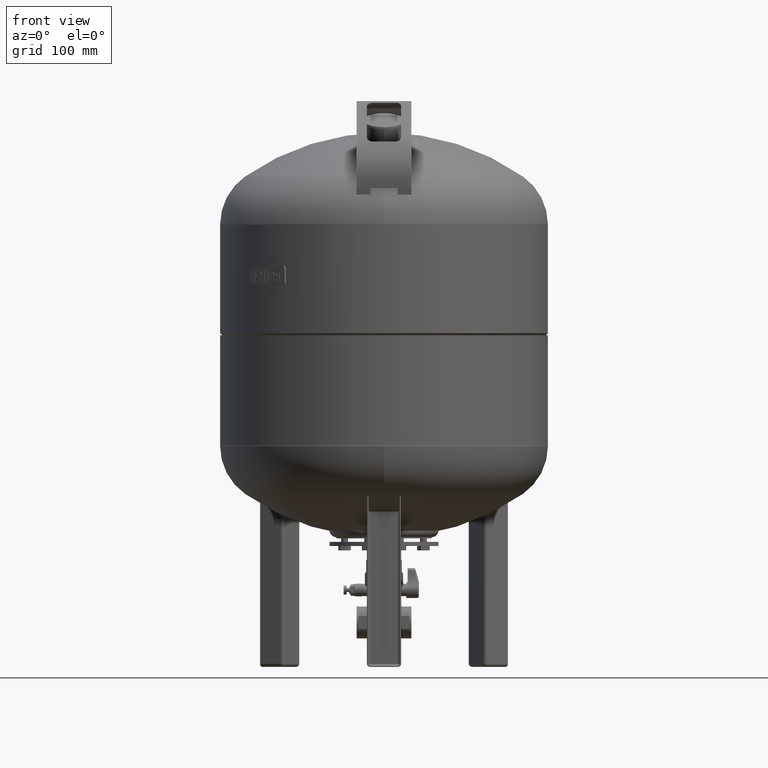
[diagram: clean part render]
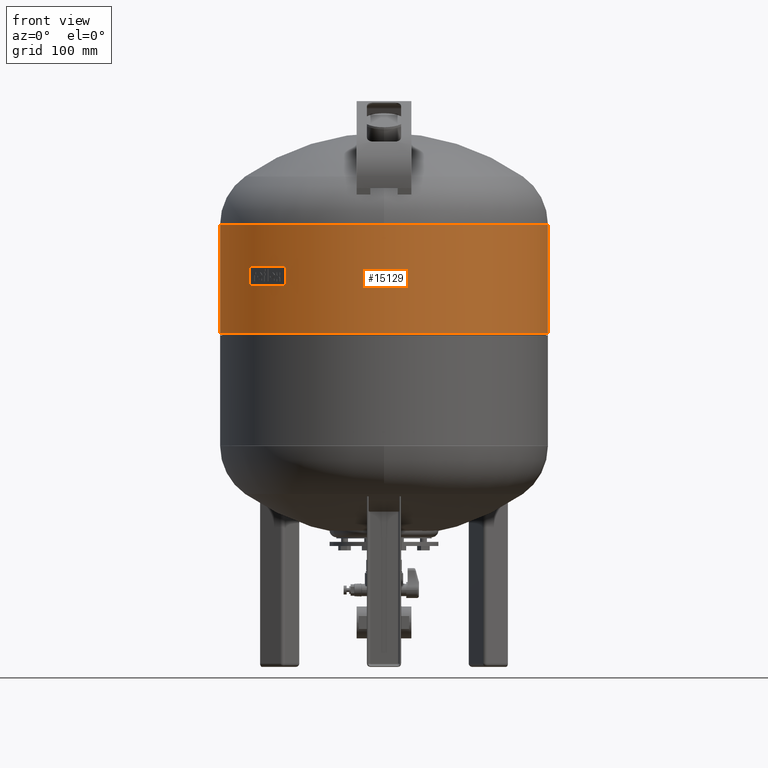
[diagram: same view with one face highlighted and labeled with its STEP entity id]
A machine part, front view. The second image highlights one B-rep face of the part: STEP entity #15129.
In plain terms, the highlighted cylindrical surface (partial cylindrical patch) has radius 240 mm, axis along (0, 0, 1).
Its self-contained STEP definition (entity closure, byte-faithful):
#15088=CARTESIAN_POINT('',(-1.469576E-014,-2.204364E-014,605.500000000000000));
#15089=DIRECTION('',(0.0,0.0,1.0));
#15090=DIRECTION('',(1.0,0.0,0.0));
#15091=AXIS2_PLACEMENT_3D('',#15088,#15089,#15090);
#15092=CYLINDRICAL_SURFACE('',#15091,240.0);
#15093=CARTESIAN_POINT('',(239.999999999999970,-2.204364E-014,647.0));
#15094=VERTEX_POINT('',#15093);
#15095=CARTESIAN_POINT('',(240.0,-5.510911E-016,488.500000000000000));
#15096=VERTEX_POINT('',#15095);
#15097=CARTESIAN_POINT('',(239.999999999999970,-2.204364E-014,647.0));
#15098=DIRECTION('',(0.0,0.0,-1.0));
#15099=VECTOR('',#15098,158.500000000000000);
#15100=LINE('',#15097,#15099);
#15101=EDGE_CURVE('',#15094,#15096,#15100,.T.);
#15102=ORIENTED_EDGE('',*,*,#15101,.F.);
#15103=CARTESIAN_POINT('',(-240.000000000000030,-5.143419E-014,647.0));
#15104=VERTEX_POINT('',#15103);
#15105=CARTESIAN_POINT('',(-1.469576E-014,-2.204364E-014,647.0));
#15106=DIRECTION('',(0.0,0.0,-1.0));
#15107=DIRECTION('',(1.0,0.0,0.0));
#15108=AXIS2_PLACEMENT_3D('',#15105,#15106,#15107);
#15109=CIRCLE('',#15108,240.0);
#15110=EDGE_CURVE('',#15094,#15104,#15109,.T.);
#15111=ORIENTED_EDGE('',*,*,#15110,.T.);
#15112=CARTESIAN_POINT('',(-240.0,2.883946E-014,488.500000000000000));
#15113=VERTEX_POINT('',#15112);
#15114=CARTESIAN_POINT('',(-240.000000000000030,-5.143419E-014,647.0));
#15115=DIRECTION('',(0.0,0.0,-1.0));
#15116=VECTOR('',#15115,158.500000000000000);
#15117=LINE('',#15114,#15116);
#15118=EDGE_CURVE('',#15104,#15113,#15117,.T.);
#15119=ORIENTED_EDGE('',*,*,#15118,.T.);
#15120=CARTESIAN_POINT('',(-3.673940E-016,-5.510911E-016,488.500000000000000));
#15121=DIRECTION('',(0.0,0.0,-1.0));
#15122=DIRECTION('',(1.0,0.0,0.0));
#15123=AXIS2_PLACEMENT_3D('',#15120,#15121,#15122);
#15124=CIRCLE('',#15123,240.0);
#15125=EDGE_CURVE('',#15096,#15113,#15124,.T.);
#15126=ORIENTED_EDGE('',*,*,#15125,.F.);
#15127=EDGE_LOOP('',(#15102,#15111,#15119,#15126));
#15128=FACE_OUTER_BOUND('',#15127,.T.);
#15129=ADVANCED_FACE('',(#15128),#15092,.T.);